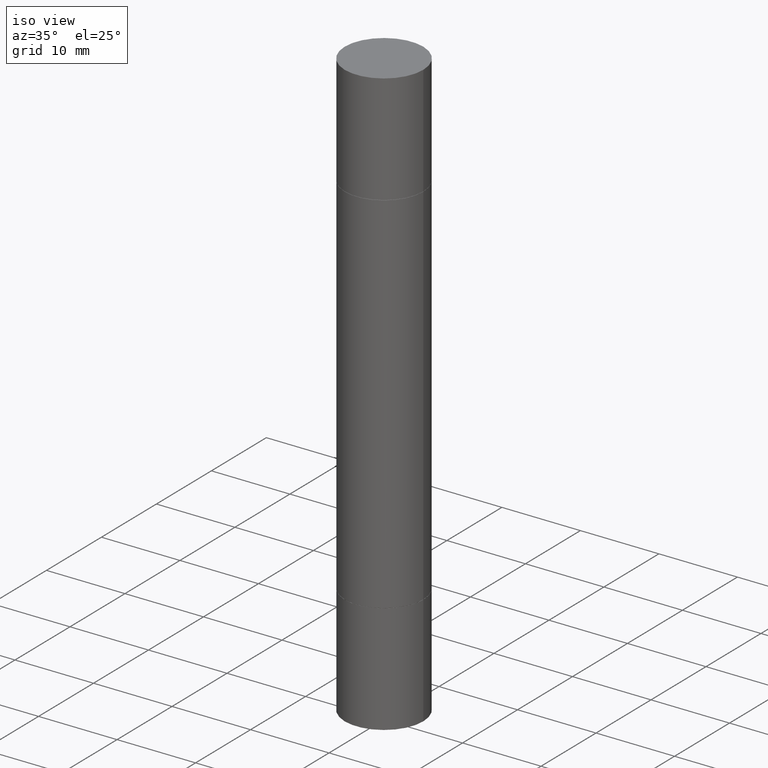
[diagram: clean part render]
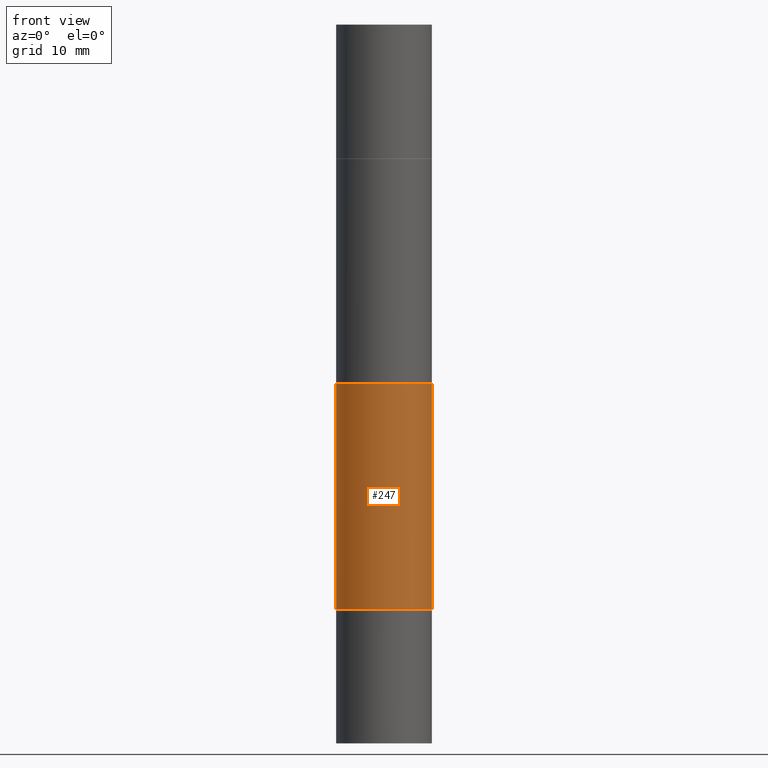
[diagram: tour spotlight — one face highlighted and labeled with its STEP entity id]
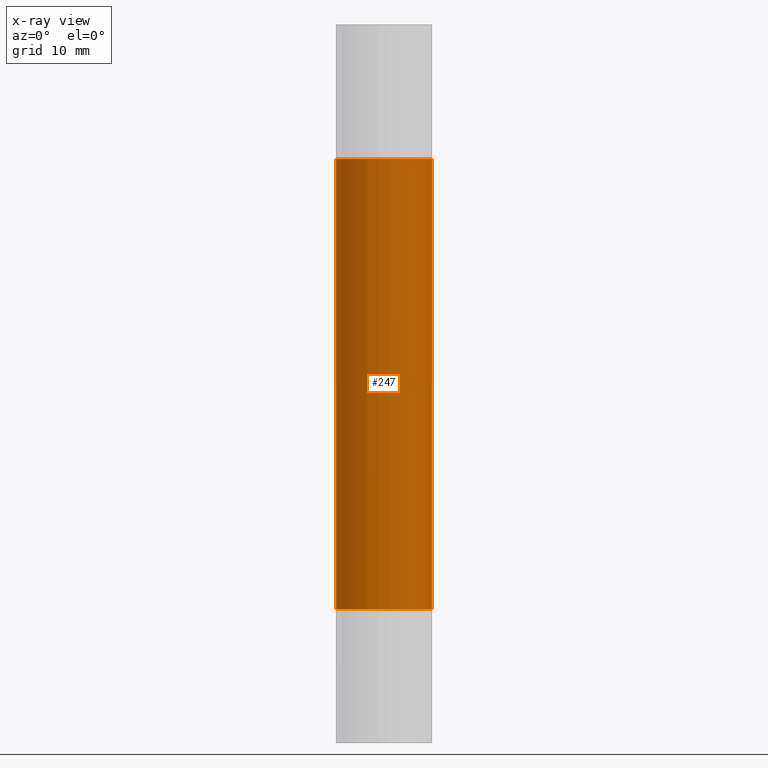
[diagram: x-ray of the same camera — body ghosted, this tour face saturated]
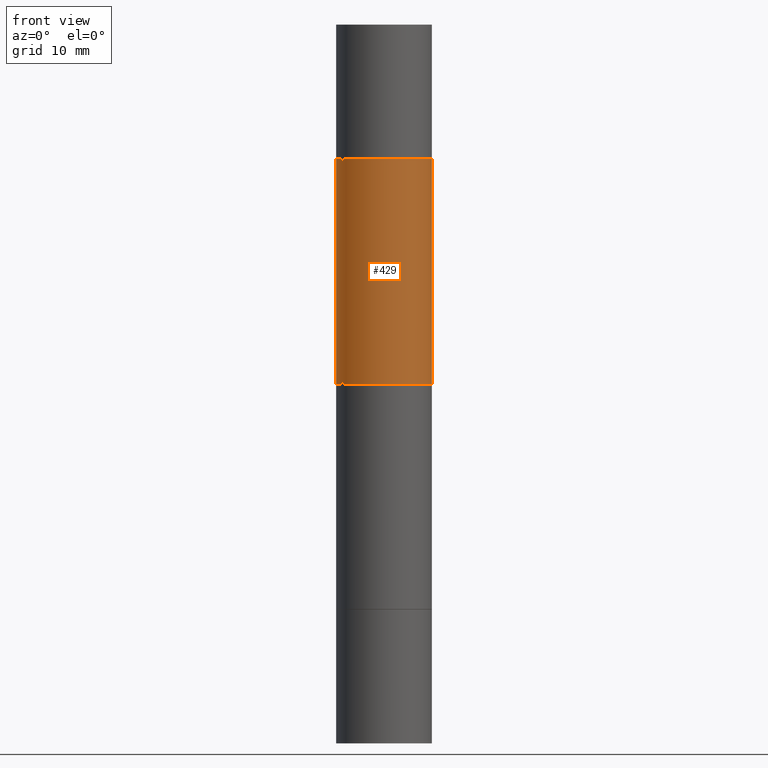
[diagram: tour spotlight — one face highlighted and labeled with its STEP entity id]
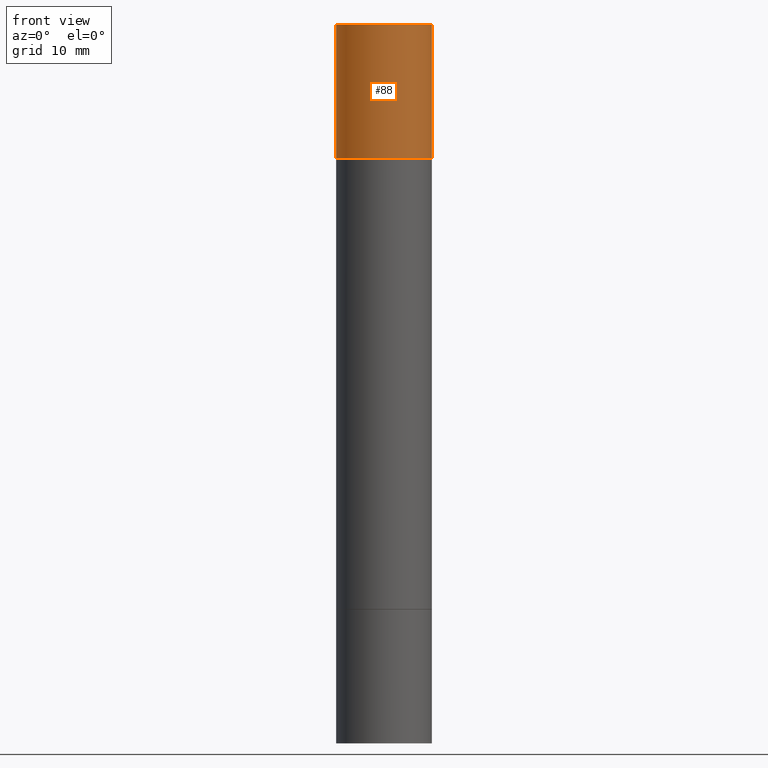
[diagram: tour spotlight — one face highlighted and labeled with its STEP entity id]
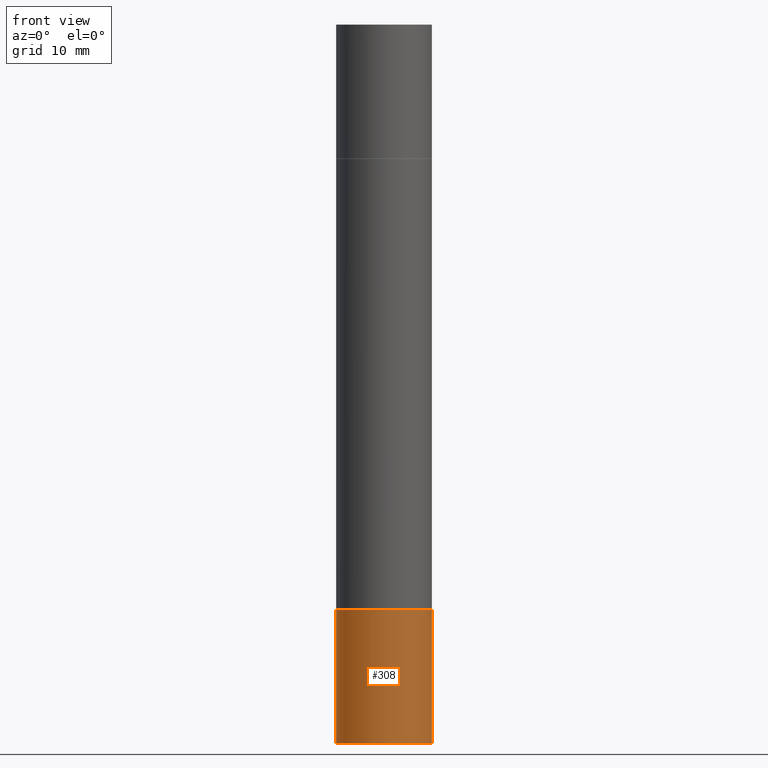
[diagram: tour spotlight — one face highlighted and labeled with its STEP entity id]
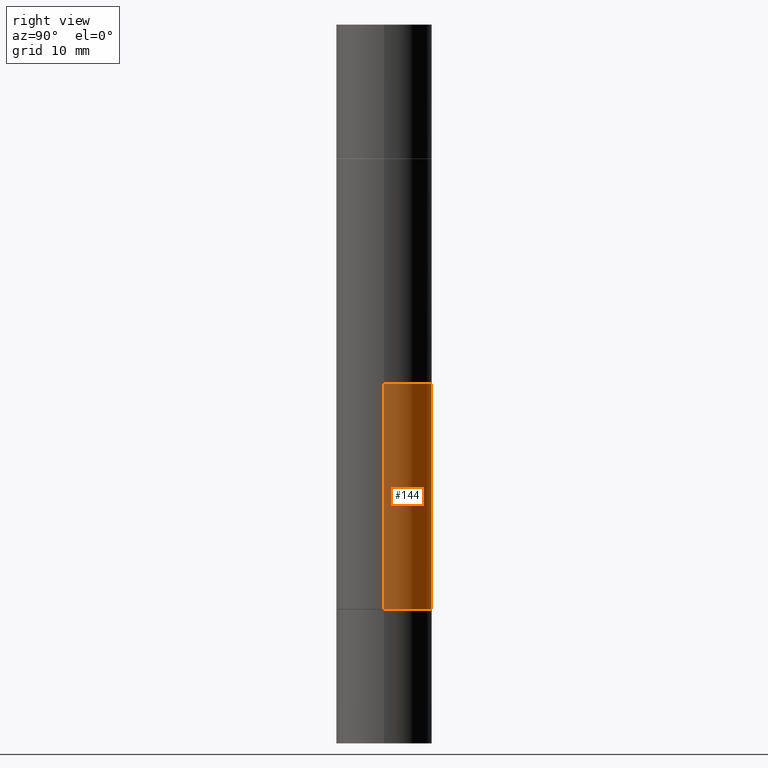
[diagram: tour spotlight — one face highlighted and labeled with its STEP entity id]
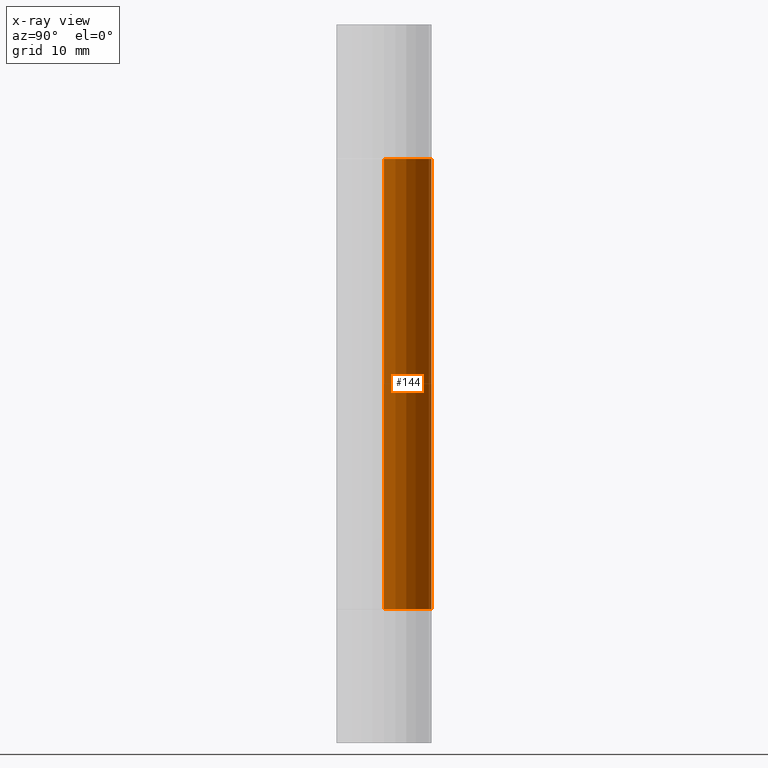
[diagram: x-ray of the same camera — body ghosted, this tour face saturated]
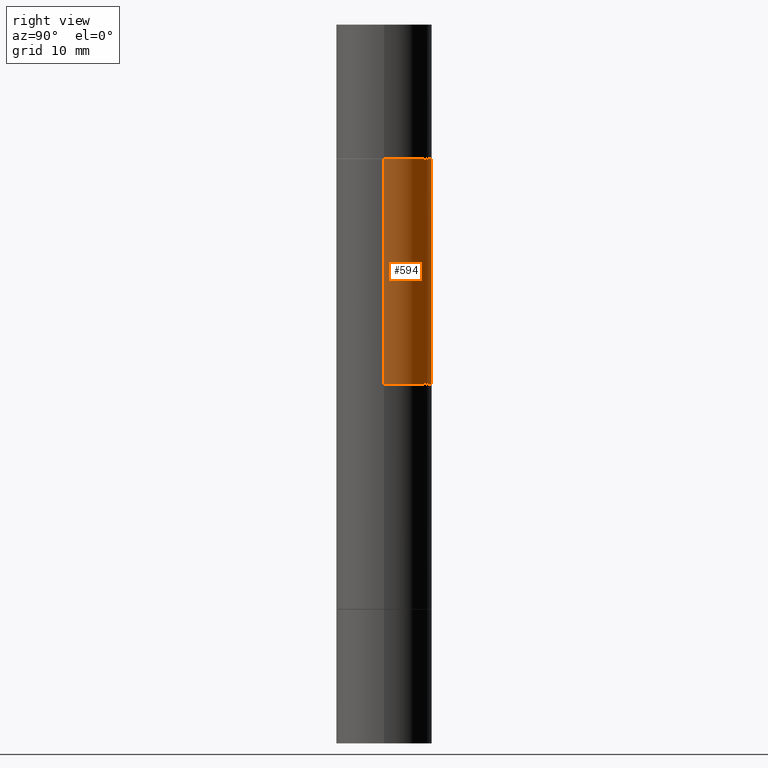
[diagram: tour spotlight — one face highlighted and labeled with its STEP entity id]
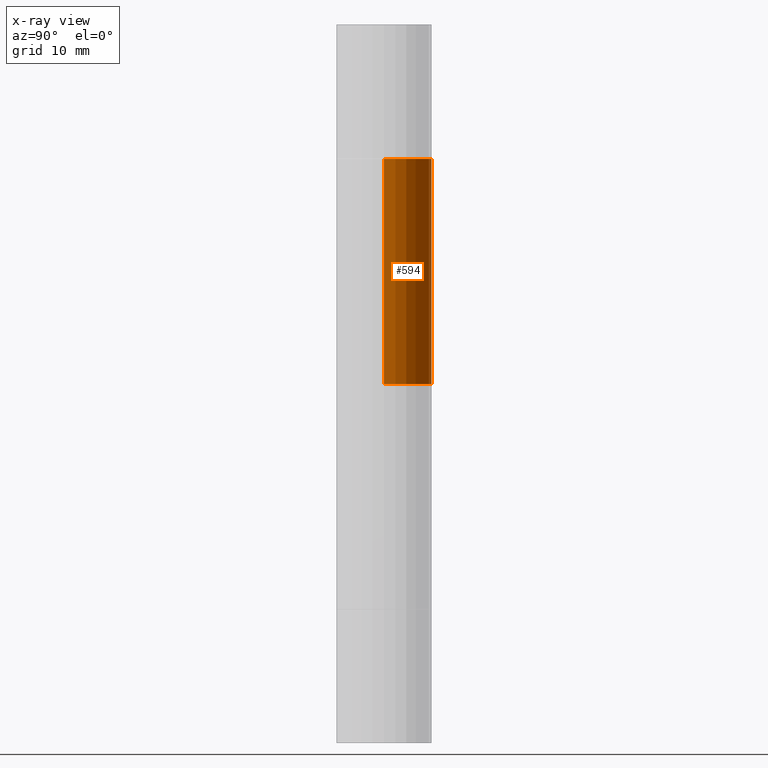
[diagram: x-ray of the same camera — body ghosted, this tour face saturated]
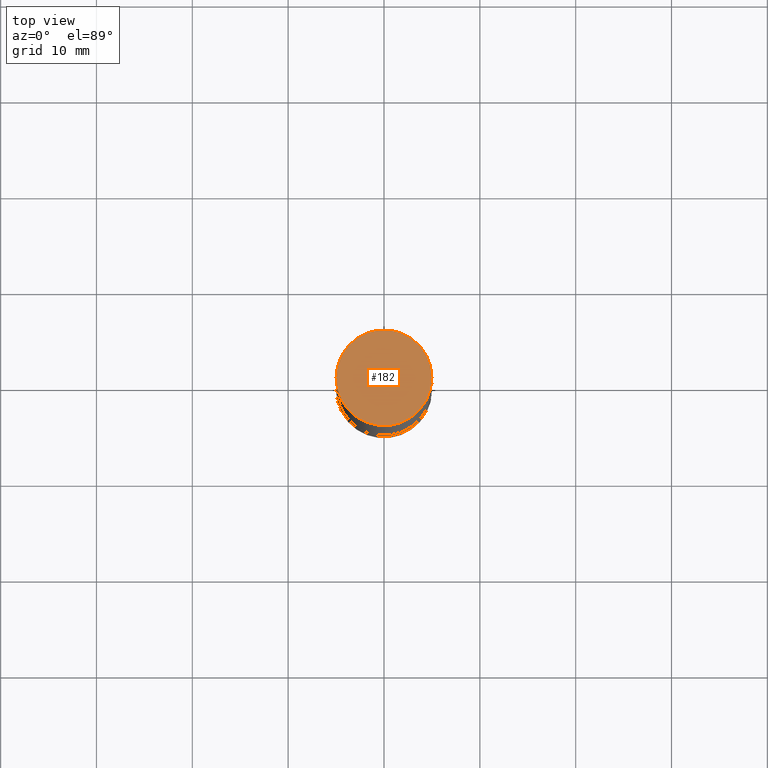
[diagram: tour spotlight — one face highlighted and labeled with its STEP entity id]
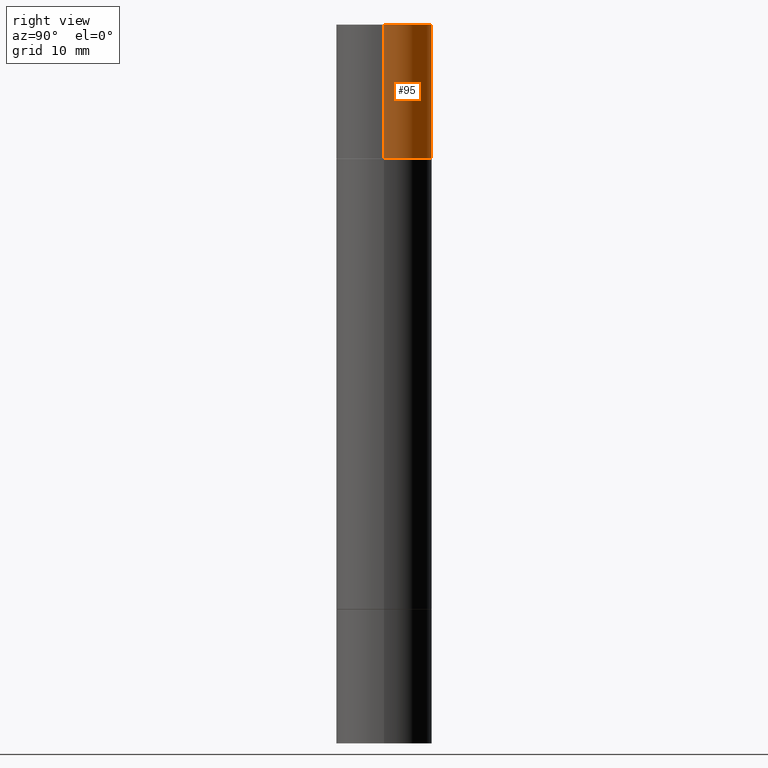
[diagram: tour spotlight — one face highlighted and labeled with its STEP entity id]
A machine part: a face-by-face anatomy tour. The part has 26 B-rep faces; the first image is the clean iso view, then the 8 largest visible faces are spotlighted one at a time (largest first), each with its STEP entity span.

Face 1 — front view, entity #247. An x-ray twin of the same camera follows (body ghosted, this face saturated) — the face is partly hidden behind the body. In plain terms, the highlighted cylindrical surface (partial cylindrical patch) has radius 5 mm, axis along (-0, -0, -1).
Definition (entity closure, byte-faithful):
#6 = CARTESIAN_POINT ( 'NONE',  ( -0.1968500000000000250, -5.762046994505618475E-16, -0.5521999999999996911 ) ) ;
#56 = VECTOR ( 'NONE', #346, 39.37007874015748143 ) ;
#84 = FACE_OUTER_BOUND ( 'NONE', #650, .T. ) ;
#93 = DIRECTION ( 'NONE',  ( -2.445468806185136877E-29, -3.492890411551753071E-15, -1.000000000000000000 ) ) ;
#94 = VERTEX_POINT ( 'NONE', #639 ) ;
#99 = DIRECTION ( 'NONE',  ( -2.445468806185136597E-29, 3.491481338843145583E-15, 1.000000000000000000 ) ) ;
#106 = CARTESIAN_POINT ( 'NONE',  ( 5.870592416128037625E-29, -8.381650102026854256E-15, -2.400599999999999401 ) ) ;
#131 = CIRCLE ( 'NONE', #610, 0.1968500000000000250 ) ;
#146 = CYLINDRICAL_SURFACE ( 'NONE', #350, 0.1968499999999998307 ) ;
#147 = EDGE_CURVE ( 'NONE', #582, #432, #680, .T. ) ;
#157 = LINE ( 'NONE', #674, #173 ) ;
#173 = VECTOR ( 'NONE', #93, 39.37007874015748143 ) ;
#174 = ORIENTED_EDGE ( 'NONE', *, *, #326, .T. ) ;
#226 = DIRECTION ( 'NONE',  ( 2.445468806185136597E-29, 3.492890411551752677E-15, 1.000000000000000000 ) ) ;
#240 = DIRECTION ( 'NONE',  ( -2.445468806185136597E-29, -3.492890411551752677E-15, -1.000000000000000000 ) ) ;
#241 = ORIENTED_EDGE ( 'NONE', *, *, #443, .T. ) ;
#247 = ADVANCED_FACE ( 'NONE', ( #84 ), #146, .T. ) ;
#252 = CARTESIAN_POINT ( 'NONE',  ( 0.1968500000000000250, -9.756246305129394287E-15, -2.400599999999999401 ) ) ;
#318 = VERTEX_POINT ( 'NONE', #252 ) ;
#326 = EDGE_CURVE ( 'NONE', #582, #94, #654, .T. ) ;
#332 = ORIENTED_EDGE ( 'NONE', *, *, #147, .F. ) ;
#346 = DIRECTION ( 'NONE',  ( -2.445468806185136877E-29, -3.492890411551753071E-15, -1.000000000000000000 ) ) ;
#350 = AXIS2_PLACEMENT_3D ( 'NONE', #505, #240, #561 ) ;
#381 = EDGE_CURVE ( 'NONE', #432, #318, #157, .T. ) ;
#432 = VERTEX_POINT ( 'NONE', #669 ) ;
#435 = CARTESIAN_POINT ( 'NONE',  ( 5.870592416128037625E-29, -1.926693730311889446E-15, -0.5521999999999996911 ) ) ;
#437 = DIRECTION ( 'NONE',  ( 1.000000000000000000, -6.982962677686267499E-15, 0.000000000000000000 ) ) ;
#438 = ORIENTED_EDGE ( 'NONE', *, *, #381, .F. ) ;
#443 = EDGE_CURVE ( 'NONE', #94, #318, #131, .T. ) ;
#474 = AXIS2_PLACEMENT_3D ( 'NONE', #435, #226, #437 ) ;
#505 = CARTESIAN_POINT ( 'NONE',  ( 0.000000000000000000, -1.031172645228302408E-14, -2.952799999999998981 ) ) ;
#508 = CARTESIAN_POINT ( 'NONE',  ( -0.1968499999999998307, -8.961237421421701017E-15, -2.952799999999998981 ) ) ;
#561 = DIRECTION ( 'NONE',  ( 1.000000000000000000, -6.982962677686264344E-15, 0.000000000000000000 ) ) ;
#582 = VERTEX_POINT ( 'NONE', #6 ) ;
#610 = AXIS2_PLACEMENT_3D ( 'NONE', #106, #99, #623 ) ;
#623 = DIRECTION ( 'NONE',  ( 1.000000000000000000, -6.982962677686262766E-15, 0.000000000000000000 ) ) ;
#639 = CARTESIAN_POINT ( 'NONE',  ( -0.1968500000000000250, -3.804334017806689102E-15, -2.400599999999999401 ) ) ;
#650 = EDGE_LOOP ( 'NONE', ( #332, #174, #241, #438 ) ) ;
#654 = LINE ( 'NONE', #508, #56 ) ;
#669 = CARTESIAN_POINT ( 'NONE',  ( 0.1968500000000000250, -3.301289933414429871E-15, -0.5521999999999996911 ) ) ;
#674 = CARTESIAN_POINT ( 'NONE',  ( 0.1968499999999998307, -1.168632265538556411E-14, -2.952799999999998981 ) ) ;
#680 = CIRCLE ( 'NONE', #474, 0.1968500000000000250 ) ;

Face 2 — front view, entity #429. In plain terms, the highlighted cylindrical surface (partial cylindrical patch) has radius 5 mm, axis along (-0, -0, -1).
Definition (entity closure, byte-faithful):
#25 = CARTESIAN_POINT ( 'NONE',  ( 5.870592416128037625E-29, -1.926693730311889446E-15, -0.5521999999999996911 ) ) ;
#26 = EDGE_CURVE ( 'NONE', #311, #339, #107, .T. ) ;
#37 = DIRECTION ( 'NONE',  ( 2.445468806185136597E-29, 3.492890411551752677E-15, 1.000000000000000000 ) ) ;
#45 = AXIS2_PLACEMENT_3D ( 'NONE', #568, #96, #418 ) ;
#46 = CARTESIAN_POINT ( 'NONE',  ( 0.1968499999999998307, -1.168632265538556411E-14, -2.952799999999998981 ) ) ;
#64 = CIRCLE ( 'NONE', #466, 0.1968499999999998307 ) ;
#96 = DIRECTION ( 'NONE',  ( -2.445468806185136597E-29, -3.492890411551752677E-15, -1.000000000000000000 ) ) ;
#107 = LINE ( 'NONE', #46, #584 ) ;
#120 = VERTEX_POINT ( 'NONE', #179 ) ;
#179 = CARTESIAN_POINT ( 'NONE',  ( -0.1968499999999998307, -2.190269358628626559E-15, -1.476399999999999491 ) ) ;
#190 = LINE ( 'NONE', #291, #258 ) ;
#203 = DIRECTION ( 'NONE',  ( -2.445468806185136877E-29, -3.492890411551753071E-15, -1.000000000000000000 ) ) ;
#206 = AXIS2_PLACEMENT_3D ( 'NONE', #25, #37, #251 ) ;
#207 = EDGE_CURVE ( 'NONE', #344, #120, #190, .T. ) ;
#209 = ORIENTED_EDGE ( 'NONE', *, *, #207, .T. ) ;
#210 = CYLINDRICAL_SURFACE ( 'NONE', #45, 0.1968499999999998307 ) ;
#227 = CIRCLE ( 'NONE', #206, 0.1968500000000000250 ) ;
#251 = DIRECTION ( 'NONE',  ( 1.000000000000000000, -6.982962677686267499E-15, 0.000000000000000000 ) ) ;
#258 = VECTOR ( 'NONE', #203, 39.37007874015748143 ) ;
#260 = DIRECTION ( 'NONE',  ( -2.445468806185136877E-29, -3.492890411551753071E-15, -1.000000000000000000 ) ) ;
#291 = CARTESIAN_POINT ( 'NONE',  ( -0.1968499999999998307, -8.961237421421701017E-15, -2.952799999999998981 ) ) ;
#311 = VERTEX_POINT ( 'NONE', #559 ) ;
#321 = ORIENTED_EDGE ( 'NONE', *, *, #26, .F. ) ;
#339 = VERTEX_POINT ( 'NONE', #511 ) ;
#340 = EDGE_CURVE ( 'NONE', #344, #311, #227, .T. ) ;
#344 = VERTEX_POINT ( 'NONE', #410 ) ;
#347 = EDGE_LOOP ( 'NONE', ( #397, #209, #602, #321 ) ) ;
#364 = FACE_OUTER_BOUND ( 'NONE', #347, .T. ) ;
#397 = ORIENTED_EDGE ( 'NONE', *, *, #340, .F. ) ;
#398 = CARTESIAN_POINT ( 'NONE',  ( 3.610490145451734531E-29, -5.154823048668018475E-15, -1.476399999999999491 ) ) ;
#401 = DIRECTION ( 'NONE',  ( -0.000000000000000000, -3.492185875197449130E-15, -1.000000000000000000 ) ) ;
#410 = CARTESIAN_POINT ( 'NONE',  ( -0.1968500000000000250, -5.762046994505618475E-16, -0.5521999999999996911 ) ) ;
#418 = DIRECTION ( 'NONE',  ( 1.000000000000000000, -6.982962677686264344E-15, 0.000000000000000000 ) ) ;
#429 = ADVANCED_FACE ( 'NONE', ( #364 ), #210, .T. ) ;
#466 = AXIS2_PLACEMENT_3D ( 'NONE', #398, #401, #606 ) ;
#511 = CARTESIAN_POINT ( 'NONE',  ( 0.1968499999999998307, -4.915354592592491624E-15, -1.476399999999999491 ) ) ;
#559 = CARTESIAN_POINT ( 'NONE',  ( 0.1968500000000000250, -3.301289933414429871E-15, -0.5521999999999996911 ) ) ;
#568 = CARTESIAN_POINT ( 'NONE',  ( 0.000000000000000000, -1.031172645228302408E-14, -2.952799999999998981 ) ) ;
#584 = VECTOR ( 'NONE', #260, 39.37007874015748143 ) ;
#598 = EDGE_CURVE ( 'NONE', #339, #120, #64, .T. ) ;
#602 = ORIENTED_EDGE ( 'NONE', *, *, #598, .F. ) ;
#606 = DIRECTION ( 'NONE',  ( 0.000000000000000000, 1.000000000000000000, -4.163344669033678790E-15 ) ) ;

Face 3 — front view, entity #88. In plain terms, the highlighted cylindrical surface (partial cylindrical patch) has radius 5 mm, axis along (-0, -0, -1).
Definition (entity closure, byte-faithful):
#14 = AXIS2_PLACEMENT_3D ( 'NONE', #315, #522, #161 ) ;
#44 = DIRECTION ( 'NONE',  ( -2.445468806185136877E-29, -3.492890411551753071E-15, -1.000000000000000000 ) ) ;
#51 = CARTESIAN_POINT ( 'NONE',  ( -0.1968500000000000250, 3.899287883846532010E-16, -0.5511999999999995792 ) ) ;
#68 = VERTEX_POINT ( 'NONE', #176 ) ;
#76 = VERTEX_POINT ( 'NONE', #536 ) ;
#88 = ADVANCED_FACE ( 'NONE', ( #450 ), #276, .T. ) ;
#100 = VECTOR ( 'NONE', #44, 39.37007874015748143 ) ;
#112 = CARTESIAN_POINT ( 'NONE',  ( 0.000000000000000000, -1.031172645228302408E-14, -2.952799999999998981 ) ) ;
#122 = VECTOR ( 'NONE', #483, 39.37007874015748143 ) ;
#161 = DIRECTION ( 'NONE',  ( 1.000000000000000000, -6.982962677686267499E-15, 0.000000000000000000 ) ) ;
#171 = LINE ( 'NONE', #277, #122 ) ;
#172 = DIRECTION ( 'NONE',  ( 1.000000000000000000, -6.982962677686267499E-15, 0.000000000000000000 ) ) ;
#176 = CARTESIAN_POINT ( 'NONE',  ( 0.1968500000000000250, -3.297797043002877729E-15, -0.5511999999999995792 ) ) ;
#248 = CARTESIAN_POINT ( 'NONE',  ( 0.1968500000000000250, -1.372515848155552113E-15, 5.463695987328526437E-16 ) ) ;
#261 = VERTEX_POINT ( 'NONE', #248 ) ;
#270 = CIRCLE ( 'NONE', #468, 0.1968500000000000250 ) ;
#273 = ORIENTED_EDGE ( 'NONE', *, *, #287, .F. ) ;
#276 = CYLINDRICAL_SURFACE ( 'NONE', #510, 0.1968500000000000250 ) ;
#277 = CARTESIAN_POINT ( 'NONE',  ( 0.1968500000000000250, -1.168632265538556569E-14, -2.952799999999998981 ) ) ;
#278 = DIRECTION ( 'NONE',  ( -2.445468806185136597E-29, -3.492890411551752677E-15, -1.000000000000000000 ) ) ;
#287 = EDGE_CURVE ( 'NONE', #76, #261, #270, .T. ) ;
#315 = CARTESIAN_POINT ( 'NONE',  ( 5.873037884934223228E-29, -1.923200839900336120E-15, -0.5511999999999995792 ) ) ;
#317 = ORIENTED_EDGE ( 'NONE', *, *, #375, .T. ) ;
#324 = CIRCLE ( 'NONE', #14, 0.1968500000000000250 ) ;
#348 = DIRECTION ( 'NONE',  ( 2.445468806185136597E-29, 3.492890411551752677E-15, 1.000000000000000000 ) ) ;
#352 = CARTESIAN_POINT ( 'NONE',  ( 7.220980290903470182E-29, 2.080354946989631982E-18, 5.463695987328526437E-16 ) ) ;
#375 = EDGE_CURVE ( 'NONE', #76, #554, #470, .T. ) ;
#448 = EDGE_LOOP ( 'NONE', ( #273, #317, #596, #533 ) ) ;
#450 = FACE_OUTER_BOUND ( 'NONE', #448, .T. ) ;
#468 = AXIS2_PLACEMENT_3D ( 'NONE', #352, #348, #557 ) ;
#470 = LINE ( 'NONE', #572, #100 ) ;
#483 = DIRECTION ( 'NONE',  ( -2.445468806185136877E-29, -3.492890411551753071E-15, -1.000000000000000000 ) ) ;
#510 = AXIS2_PLACEMENT_3D ( 'NONE', #112, #278, #172 ) ;
#522 = DIRECTION ( 'NONE',  ( 2.445468806185136597E-29, 3.492890411551752677E-15, 1.000000000000000000 ) ) ;
#533 = ORIENTED_EDGE ( 'NONE', *, *, #589, .F. ) ;
#536 = CARTESIAN_POINT ( 'NONE',  ( -0.1968500000000000250, 3.899287883846529545E-16, 5.463695987328561936E-16 ) ) ;
#537 = EDGE_CURVE ( 'NONE', #554, #68, #324, .T. ) ;
#554 = VERTEX_POINT ( 'NONE', #51 ) ;
#557 = DIRECTION ( 'NONE',  ( 1.000000000000000000, -6.982962677686265922E-15, 0.000000000000000000 ) ) ;
#572 = CARTESIAN_POINT ( 'NONE',  ( -0.1968500000000000250, -8.961237421421697861E-15, -2.952799999999998981 ) ) ;
#589 = EDGE_CURVE ( 'NONE', #261, #68, #171, .T. ) ;
#596 = ORIENTED_EDGE ( 'NONE', *, *, #537, .T. ) ;

Face 4 — front view, entity #308. In plain terms, the highlighted cylindrical surface (partial cylindrical patch) has radius 5 mm, axis along (-0, 0, 1).
Definition (entity closure, byte-faithful):
#16 = VERTEX_POINT ( 'NONE', #581 ) ;
#36 = VECTOR ( 'NONE', #515, 39.37007874015748143 ) ;
#43 = VERTEX_POINT ( 'NONE', #55 ) ;
#47 = ORIENTED_EDGE ( 'NONE', *, *, #215, .T. ) ;
#50 = ORIENTED_EDGE ( 'NONE', *, *, #113, .F. ) ;
#55 = CARTESIAN_POINT ( 'NONE',  ( -0.1968500000000000250, -7.948690465007109319E-15, -2.401599999999999735 ) ) ;
#59 = LINE ( 'NONE', #118, #485 ) ;
#72 = ORIENTED_EDGE ( 'NONE', *, *, #363, .T. ) ;
#78 = DIRECTION ( 'NONE',  ( 1.000000000000000000, -6.982962677686265922E-15, 4.876176775795935793E-29 ) ) ;
#113 = EDGE_CURVE ( 'NONE', #628, #43, #59, .T. ) ;
#118 = CARTESIAN_POINT ( 'NONE',  ( -0.1968500000000000250, 1.398703375343757393E-15, -9.682923725166783677E-30 ) ) ;
#149 = DIRECTION ( 'NONE',  ( -2.445468806185136597E-29, 3.491481338843145583E-15, 1.000000000000000000 ) ) ;
#150 = AXIS2_PLACEMENT_3D ( 'NONE', #236, #149, #357 ) ;
#180 = EDGE_LOOP ( 'NONE', ( #50, #47, #72, #415 ) ) ;
#195 = DIRECTION ( 'NONE',  ( 1.000000000000000000, -6.982962677686267499E-15, 0.000000000000000000 ) ) ;
#201 = EDGE_CURVE ( 'NONE', #43, #16, #672, .T. ) ;
#215 = EDGE_CURVE ( 'NONE', #628, #492, #588, .T. ) ;
#236 = CARTESIAN_POINT ( 'NONE',  ( 5.873037884934223228E-29, -8.385141583365697263E-15, -2.401599999999999735 ) ) ;
#308 = ADVANCED_FACE ( 'NONE', ( #659 ), #356, .T. ) ;
#356 = CYLINDRICAL_SURFACE ( 'NONE', #462, 0.1968500000000000250 ) ;
#357 = DIRECTION ( 'NONE',  ( 1.000000000000000000, -6.982962677686262766E-15, 0.000000000000000000 ) ) ;
#363 = EDGE_CURVE ( 'NONE', #492, #16, #465, .T. ) ;
#367 = CARTESIAN_POINT ( 'NONE',  ( 0.1968500000000000250, -1.168424230043858014E-14, -2.952799999999999869 ) ) ;
#376 = DIRECTION ( 'NONE',  ( -2.445468806185136877E-29, 3.491481338843145188E-15, 1.000000000000000000 ) ) ;
#402 = CARTESIAN_POINT ( 'NONE',  ( 7.220980290903470182E-29, -1.030964609733603853E-14, -2.952799999999999869 ) ) ;
#415 = ORIENTED_EDGE ( 'NONE', *, *, #201, .F. ) ;
#462 = AXIS2_PLACEMENT_3D ( 'NONE', #553, #513, #78 ) ;
#465 = LINE ( 'NONE', #624, #36 ) ;
#485 = VECTOR ( 'NONE', #376, 39.37007874015748143 ) ;
#492 = VERTEX_POINT ( 'NONE', #367 ) ;
#513 = DIRECTION ( 'NONE',  ( -2.445468806185136597E-29, 3.491481338843145583E-15, 1.000000000000000000 ) ) ;
#515 = DIRECTION ( 'NONE',  ( -2.445468806185136877E-29, 3.491481338843145188E-15, 1.000000000000000000 ) ) ;
#553 = CARTESIAN_POINT ( 'NONE',  ( 0.000000000000000000, 0.000000000000000000, 0.000000000000000000 ) ) ;
#581 = CARTESIAN_POINT ( 'NONE',  ( 0.1968500000000000250, -9.759737786468237294E-15, -2.401599999999999735 ) ) ;
#588 = CIRCLE ( 'NONE', #619, 0.1968500000000000250 ) ;
#619 = AXIS2_PLACEMENT_3D ( 'NONE', #402, #666, #195 ) ;
#624 = CARTESIAN_POINT ( 'NONE',  ( 0.1968500000000000250, -1.374596203102541608E-15, 9.598753983154300858E-30 ) ) ;
#628 = VERTEX_POINT ( 'NONE', #645 ) ;
#645 = CARTESIAN_POINT ( 'NONE',  ( -0.1968500000000000250, -7.948690465007109319E-15, -2.952799999999999869 ) ) ;
#659 = FACE_OUTER_BOUND ( 'NONE', #180, .T. ) ;
#666 = DIRECTION ( 'NONE',  ( -2.445468806185136597E-29, 3.491481338843145583E-15, 1.000000000000000000 ) ) ;
#672 = CIRCLE ( 'NONE', #150, 0.1968500000000000250 ) ;

Face 5 — right view, entity #144. An x-ray twin of the same camera follows (body ghosted, this face saturated) — the face is partly hidden behind the body. In plain terms, the highlighted cylindrical surface (partial cylindrical patch) has radius 5 mm, axis along (-0, -0, -1).
Definition (entity closure, byte-faithful):
#6 = CARTESIAN_POINT ( 'NONE',  ( -0.1968500000000000250, -5.762046994505618475E-16, -0.5521999999999996911 ) ) ;
#17 = DIRECTION ( 'NONE',  ( 2.445468806185136597E-29, 3.492890411551752677E-15, 1.000000000000000000 ) ) ;
#56 = VECTOR ( 'NONE', #346, 39.37007874015748143 ) ;
#87 = AXIS2_PLACEMENT_3D ( 'NONE', #342, #481, #549 ) ;
#93 = DIRECTION ( 'NONE',  ( -2.445468806185136877E-29, -3.492890411551753071E-15, -1.000000000000000000 ) ) ;
#94 = VERTEX_POINT ( 'NONE', #639 ) ;
#144 = ADVANCED_FACE ( 'NONE', ( #325 ), #224, .T. ) ;
#157 = LINE ( 'NONE', #674, #173 ) ;
#163 = ORIENTED_EDGE ( 'NONE', *, *, #326, .F. ) ;
#173 = VECTOR ( 'NONE', #93, 39.37007874015748143 ) ;
#184 = ORIENTED_EDGE ( 'NONE', *, *, #381, .T. ) ;
#185 = AXIS2_PLACEMENT_3D ( 'NONE', #617, #518, #309 ) ;
#188 = DIRECTION ( 'NONE',  ( 1.000000000000000000, -6.982962677686267499E-15, 0.000000000000000000 ) ) ;
#224 = CYLINDRICAL_SURFACE ( 'NONE', #87, 0.1968499999999998307 ) ;
#239 = CIRCLE ( 'NONE', #185, 0.1968500000000000250 ) ;
#252 = CARTESIAN_POINT ( 'NONE',  ( 0.1968500000000000250, -9.756246305129394287E-15, -2.400599999999999401 ) ) ;
#309 = DIRECTION ( 'NONE',  ( 1.000000000000000000, -6.982962677686262766E-15, 0.000000000000000000 ) ) ;
#318 = VERTEX_POINT ( 'NONE', #252 ) ;
#325 = FACE_OUTER_BOUND ( 'NONE', #359, .T. ) ;
#326 = EDGE_CURVE ( 'NONE', #582, #94, #654, .T. ) ;
#342 = CARTESIAN_POINT ( 'NONE',  ( 0.000000000000000000, -1.031172645228302408E-14, -2.952799999999998981 ) ) ;
#346 = DIRECTION ( 'NONE',  ( -2.445468806185136877E-29, -3.492890411551753071E-15, -1.000000000000000000 ) ) ;
#355 = EDGE_CURVE ( 'NONE', #318, #94, #239, .T. ) ;
#359 = EDGE_LOOP ( 'NONE', ( #163, #387, #184, #655 ) ) ;
#381 = EDGE_CURVE ( 'NONE', #432, #318, #157, .T. ) ;
#387 = ORIENTED_EDGE ( 'NONE', *, *, #668, .F. ) ;
#389 = CARTESIAN_POINT ( 'NONE',  ( 5.870592416128037625E-29, -1.926693730311889446E-15, -0.5521999999999996911 ) ) ;
#432 = VERTEX_POINT ( 'NONE', #669 ) ;
#481 = DIRECTION ( 'NONE',  ( -2.445468806185136597E-29, -3.492890411551752677E-15, -1.000000000000000000 ) ) ;
#508 = CARTESIAN_POINT ( 'NONE',  ( -0.1968499999999998307, -8.961237421421701017E-15, -2.952799999999998981 ) ) ;
#518 = DIRECTION ( 'NONE',  ( -2.445468806185136597E-29, 3.491481338843145583E-15, 1.000000000000000000 ) ) ;
#549 = DIRECTION ( 'NONE',  ( 1.000000000000000000, -6.982962677686264344E-15, 0.000000000000000000 ) ) ;
#582 = VERTEX_POINT ( 'NONE', #6 ) ;
#617 = CARTESIAN_POINT ( 'NONE',  ( 5.870592416128037625E-29, -8.381650102026854256E-15, -2.400599999999999401 ) ) ;
#639 = CARTESIAN_POINT ( 'NONE',  ( -0.1968500000000000250, -3.804334017806689102E-15, -2.400599999999999401 ) ) ;
#654 = LINE ( 'NONE', #508, #56 ) ;
#655 = ORIENTED_EDGE ( 'NONE', *, *, #355, .T. ) ;
#665 = AXIS2_PLACEMENT_3D ( 'NONE', #389, #17, #188 ) ;
#668 = EDGE_CURVE ( 'NONE', #432, #582, #675, .T. ) ;
#669 = CARTESIAN_POINT ( 'NONE',  ( 0.1968500000000000250, -3.301289933414429871E-15, -0.5521999999999996911 ) ) ;
#674 = CARTESIAN_POINT ( 'NONE',  ( 0.1968499999999998307, -1.168632265538556411E-14, -2.952799999999998981 ) ) ;
#675 = CIRCLE ( 'NONE', #665, 0.1968500000000000250 ) ;

Face 6 — right view, entity #594. An x-ray twin of the same camera follows (body ghosted, this face saturated) — the face is partly hidden behind the body. In plain terms, the highlighted cylindrical surface (partial cylindrical patch) has radius 5 mm, axis along (-0, -0, -1).
Definition (entity closure, byte-faithful):
#1 = EDGE_LOOP ( 'NONE', ( #101, #27, #423, #283 ) ) ;
#8 = FACE_OUTER_BOUND ( 'NONE', #1, .T. ) ;
#26 = EDGE_CURVE ( 'NONE', #311, #339, #107, .T. ) ;
#27 = ORIENTED_EDGE ( 'NONE', *, *, #532, .F. ) ;
#29 = AXIS2_PLACEMENT_3D ( 'NONE', #488, #235, #436 ) ;
#46 = CARTESIAN_POINT ( 'NONE',  ( 0.1968499999999998307, -1.168632265538556411E-14, -2.952799999999998981 ) ) ;
#73 = CYLINDRICAL_SURFACE ( 'NONE', #193, 0.1968499999999998307 ) ;
#101 = ORIENTED_EDGE ( 'NONE', *, *, #207, .F. ) ;
#107 = LINE ( 'NONE', #46, #584 ) ;
#120 = VERTEX_POINT ( 'NONE', #179 ) ;
#179 = CARTESIAN_POINT ( 'NONE',  ( -0.1968499999999998307, -2.190269358628626559E-15, -1.476399999999999491 ) ) ;
#181 = CARTESIAN_POINT ( 'NONE',  ( 0.000000000000000000, -1.031172645228302408E-14, -2.952799999999998981 ) ) ;
#190 = LINE ( 'NONE', #291, #258 ) ;
#193 = AXIS2_PLACEMENT_3D ( 'NONE', #181, #336, #232 ) ;
#203 = DIRECTION ( 'NONE',  ( -2.445468806185136877E-29, -3.492890411551753071E-15, -1.000000000000000000 ) ) ;
#207 = EDGE_CURVE ( 'NONE', #344, #120, #190, .T. ) ;
#232 = DIRECTION ( 'NONE',  ( 1.000000000000000000, -6.982962677686264344E-15, 0.000000000000000000 ) ) ;
#235 = DIRECTION ( 'NONE',  ( -0.000000000000000000, -3.492185875197449130E-15, -1.000000000000000000 ) ) ;
#258 = VECTOR ( 'NONE', #203, 39.37007874015748143 ) ;
#260 = DIRECTION ( 'NONE',  ( -2.445468806185136877E-29, -3.492890411551753071E-15, -1.000000000000000000 ) ) ;
#283 = ORIENTED_EDGE ( 'NONE', *, *, #670, .F. ) ;
#291 = CARTESIAN_POINT ( 'NONE',  ( -0.1968499999999998307, -8.961237421421701017E-15, -2.952799999999998981 ) ) ;
#311 = VERTEX_POINT ( 'NONE', #559 ) ;
#336 = DIRECTION ( 'NONE',  ( -2.445468806185136597E-29, -3.492890411551752677E-15, -1.000000000000000000 ) ) ;
#339 = VERTEX_POINT ( 'NONE', #511 ) ;
#343 = CIRCLE ( 'NONE', #29, 0.1968499999999998307 ) ;
#344 = VERTEX_POINT ( 'NONE', #410 ) ;
#379 = CIRCLE ( 'NONE', #394, 0.1968500000000000250 ) ;
#394 = AXIS2_PLACEMENT_3D ( 'NONE', #472, #480, #433 ) ;
#410 = CARTESIAN_POINT ( 'NONE',  ( -0.1968500000000000250, -5.762046994505618475E-16, -0.5521999999999996911 ) ) ;
#423 = ORIENTED_EDGE ( 'NONE', *, *, #26, .T. ) ;
#433 = DIRECTION ( 'NONE',  ( 1.000000000000000000, -6.982962677686267499E-15, 0.000000000000000000 ) ) ;
#436 = DIRECTION ( 'NONE',  ( 0.000000000000000000, 1.000000000000000000, -4.163344669033678790E-15 ) ) ;
#472 = CARTESIAN_POINT ( 'NONE',  ( 5.870592416128037625E-29, -1.926693730311889446E-15, -0.5521999999999996911 ) ) ;
#480 = DIRECTION ( 'NONE',  ( 2.445468806185136597E-29, 3.492890411551752677E-15, 1.000000000000000000 ) ) ;
#488 = CARTESIAN_POINT ( 'NONE',  ( 3.610490145451734531E-29, -5.154823048668018475E-15, -1.476399999999999491 ) ) ;
#511 = CARTESIAN_POINT ( 'NONE',  ( 0.1968499999999998307, -4.915354592592491624E-15, -1.476399999999999491 ) ) ;
#532 = EDGE_CURVE ( 'NONE', #311, #344, #379, .T. ) ;
#559 = CARTESIAN_POINT ( 'NONE',  ( 0.1968500000000000250, -3.301289933414429871E-15, -0.5521999999999996911 ) ) ;
#584 = VECTOR ( 'NONE', #260, 39.37007874015748143 ) ;
#594 = ADVANCED_FACE ( 'NONE', ( #8 ), #73, .T. ) ;
#670 = EDGE_CURVE ( 'NONE', #120, #339, #343, .T. ) ;

Face 7 — top view, entity #182. In plain terms, the highlighted planar face has unit normal (0, 0, 1).
Definition (entity closure, byte-faithful):
#5 = ORIENTED_EDGE ( 'NONE', *, *, #65, .T. ) ;
#13 = AXIS2_PLACEMENT_3D ( 'NONE', #281, #490, #285 ) ;
#65 = EDGE_CURVE ( 'NONE', #261, #76, #609, .T. ) ;
#76 = VERTEX_POINT ( 'NONE', #536 ) ;
#98 = AXIS2_PLACEMENT_3D ( 'NONE', #573, #314, #132 ) ;
#128 = PLANE ( 'NONE',  #13 ) ;
#132 = DIRECTION ( 'NONE',  ( 1.000000000000000000, -6.982962677686265922E-15, 0.000000000000000000 ) ) ;
#182 = ADVANCED_FACE ( 'NONE', ( #595 ), #128, .T. ) ;
#248 = CARTESIAN_POINT ( 'NONE',  ( 0.1968500000000000250, -1.372515848155552113E-15, 5.463695987328526437E-16 ) ) ;
#261 = VERTEX_POINT ( 'NONE', #248 ) ;
#267 = ORIENTED_EDGE ( 'NONE', *, *, #287, .T. ) ;
#270 = CIRCLE ( 'NONE', #468, 0.1968500000000000250 ) ;
#281 = CARTESIAN_POINT ( 'NONE',  ( 1.374596203102613789E-15, 0.1968500000000000250, -5.463695987328526437E-16 ) ) ;
#285 = DIRECTION ( 'NONE',  ( -1.000000000000000000, 6.982962677686265922E-15, -9.839502134516470631E-33 ) ) ;
#287 = EDGE_CURVE ( 'NONE', #76, #261, #270, .T. ) ;
#314 = DIRECTION ( 'NONE',  ( 2.445468806185136597E-29, 3.492890411551752677E-15, 1.000000000000000000 ) ) ;
#348 = DIRECTION ( 'NONE',  ( 2.445468806185136597E-29, 3.492890411551752677E-15, 1.000000000000000000 ) ) ;
#352 = CARTESIAN_POINT ( 'NONE',  ( 7.220980290903470182E-29, 2.080354946989631982E-18, 5.463695987328526437E-16 ) ) ;
#468 = AXIS2_PLACEMENT_3D ( 'NONE', #352, #348, #557 ) ;
#490 = DIRECTION ( 'NONE',  ( 2.438088387897959769E-29, 3.492890411551753071E-15, 1.000000000000000000 ) ) ;
#536 = CARTESIAN_POINT ( 'NONE',  ( -0.1968500000000000250, 3.899287883846529545E-16, 5.463695987328561936E-16 ) ) ;
#557 = DIRECTION ( 'NONE',  ( 1.000000000000000000, -6.982962677686265922E-15, 0.000000000000000000 ) ) ;
#573 = CARTESIAN_POINT ( 'NONE',  ( 7.220980290903470182E-29, 2.080354946989631982E-18, 5.463695987328526437E-16 ) ) ;
#591 = EDGE_LOOP ( 'NONE', ( #5, #267 ) ) ;
#595 = FACE_OUTER_BOUND ( 'NONE', #591, .T. ) ;
#609 = CIRCLE ( 'NONE', #98, 0.1968500000000000250 ) ;

Face 8 — right view, entity #95. In plain terms, the highlighted cylindrical surface (partial cylindrical patch) has radius 5 mm, axis along (-0, -0, -1).
Definition (entity closure, byte-faithful):
#44 = DIRECTION ( 'NONE',  ( -2.445468806185136877E-29, -3.492890411551753071E-15, -1.000000000000000000 ) ) ;
#51 = CARTESIAN_POINT ( 'NONE',  ( -0.1968500000000000250, 3.899287883846532010E-16, -0.5511999999999995792 ) ) ;
#65 = EDGE_CURVE ( 'NONE', #261, #76, #609, .T. ) ;
#68 = VERTEX_POINT ( 'NONE', #176 ) ;
#76 = VERTEX_POINT ( 'NONE', #536 ) ;
#95 = ADVANCED_FACE ( 'NONE', ( #337 ), #539, .T. ) ;
#98 = AXIS2_PLACEMENT_3D ( 'NONE', #573, #314, #132 ) ;
#100 = VECTOR ( 'NONE', #44, 39.37007874015748143 ) ;
#122 = VECTOR ( 'NONE', #483, 39.37007874015748143 ) ;
#132 = DIRECTION ( 'NONE',  ( 1.000000000000000000, -6.982962677686265922E-15, 0.000000000000000000 ) ) ;
#171 = LINE ( 'NONE', #277, #122 ) ;
#176 = CARTESIAN_POINT ( 'NONE',  ( 0.1968500000000000250, -3.297797043002877729E-15, -0.5511999999999995792 ) ) ;
#212 = DIRECTION ( 'NONE',  ( 1.000000000000000000, -6.982962677686267499E-15, 0.000000000000000000 ) ) ;
#248 = CARTESIAN_POINT ( 'NONE',  ( 0.1968500000000000250, -1.372515848155552113E-15, 5.463695987328526437E-16 ) ) ;
#261 = VERTEX_POINT ( 'NONE', #248 ) ;
#262 = CARTESIAN_POINT ( 'NONE',  ( 5.873037884934223228E-29, -1.923200839900336120E-15, -0.5511999999999995792 ) ) ;
#277 = CARTESIAN_POINT ( 'NONE',  ( 0.1968500000000000250, -1.168632265538556569E-14, -2.952799999999998981 ) ) ;
#286 = ORIENTED_EDGE ( 'NONE', *, *, #65, .F. ) ;
#314 = DIRECTION ( 'NONE',  ( 2.445468806185136597E-29, 3.492890411551752677E-15, 1.000000000000000000 ) ) ;
#337 = FACE_OUTER_BOUND ( 'NONE', #454, .T. ) ;
#375 = EDGE_CURVE ( 'NONE', #76, #554, #470, .T. ) ;
#380 = DIRECTION ( 'NONE',  ( 1.000000000000000000, -6.982962677686267499E-15, 0.000000000000000000 ) ) ;
#392 = ORIENTED_EDGE ( 'NONE', *, *, #589, .T. ) ;
#441 = CARTESIAN_POINT ( 'NONE',  ( 0.000000000000000000, -1.031172645228302408E-14, -2.952799999999998981 ) ) ;
#454 = EDGE_LOOP ( 'NONE', ( #633, #286, #392, #516 ) ) ;
#470 = LINE ( 'NONE', #572, #100 ) ;
#483 = DIRECTION ( 'NONE',  ( -2.445468806185136877E-29, -3.492890411551753071E-15, -1.000000000000000000 ) ) ;
#504 = CIRCLE ( 'NONE', #614, 0.1968500000000000250 ) ;
#516 = ORIENTED_EDGE ( 'NONE', *, *, #550, .T. ) ;
#530 = AXIS2_PLACEMENT_3D ( 'NONE', #441, #585, #380 ) ;
#536 = CARTESIAN_POINT ( 'NONE',  ( -0.1968500000000000250, 3.899287883846529545E-16, 5.463695987328561936E-16 ) ) ;
#539 = CYLINDRICAL_SURFACE ( 'NONE', #530, 0.1968500000000000250 ) ;
#550 = EDGE_CURVE ( 'NONE', #68, #554, #504, .T. ) ;
#554 = VERTEX_POINT ( 'NONE', #51 ) ;
#572 = CARTESIAN_POINT ( 'NONE',  ( -0.1968500000000000250, -8.961237421421697861E-15, -2.952799999999998981 ) ) ;
#573 = CARTESIAN_POINT ( 'NONE',  ( 7.220980290903470182E-29, 2.080354946989631982E-18, 5.463695987328526437E-16 ) ) ;
#585 = DIRECTION ( 'NONE',  ( -2.445468806185136597E-29, -3.492890411551752677E-15, -1.000000000000000000 ) ) ;
#589 = EDGE_CURVE ( 'NONE', #261, #68, #171, .T. ) ;
#609 = CIRCLE ( 'NONE', #98, 0.1968500000000000250 ) ;
#614 = AXIS2_PLACEMENT_3D ( 'NONE', #262, #637, #212 ) ;
#633 = ORIENTED_EDGE ( 'NONE', *, *, #375, .F. ) ;
#637 = DIRECTION ( 'NONE',  ( 2.445468806185136597E-29, 3.492890411551752677E-15, 1.000000000000000000 ) ) ;